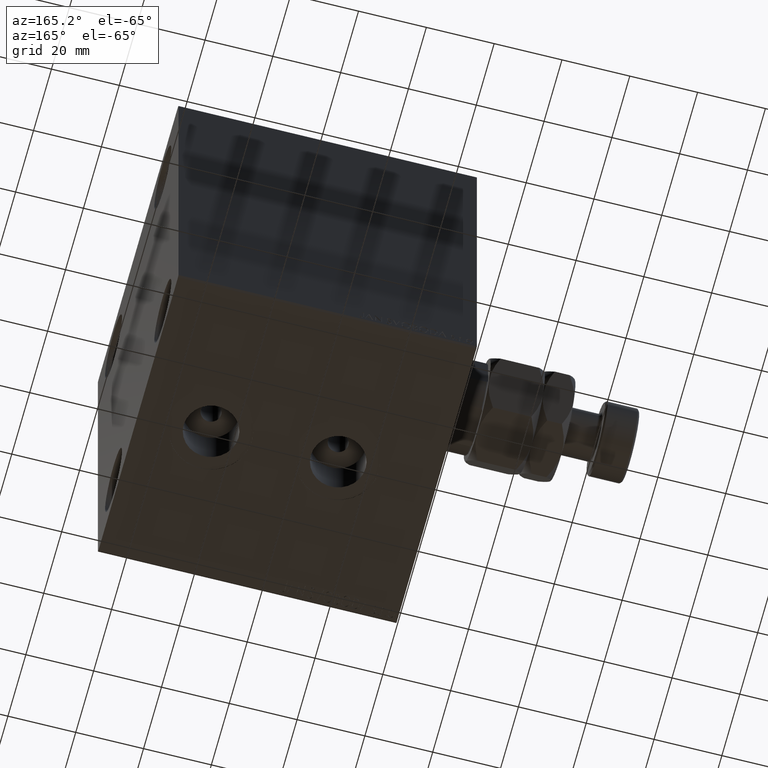
[diagram: clean part render]
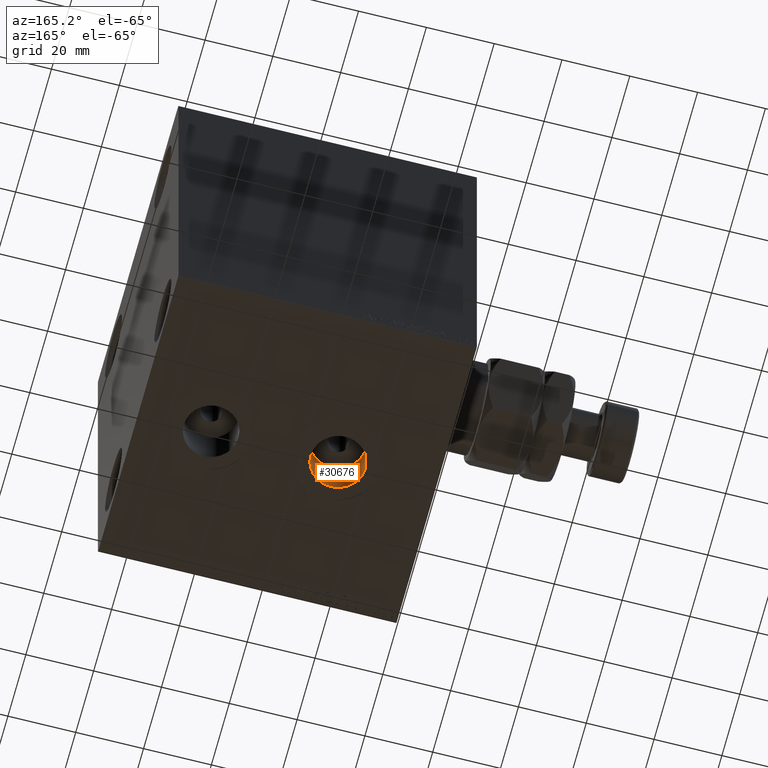
[diagram: same view with one face highlighted and labeled with its STEP entity id]
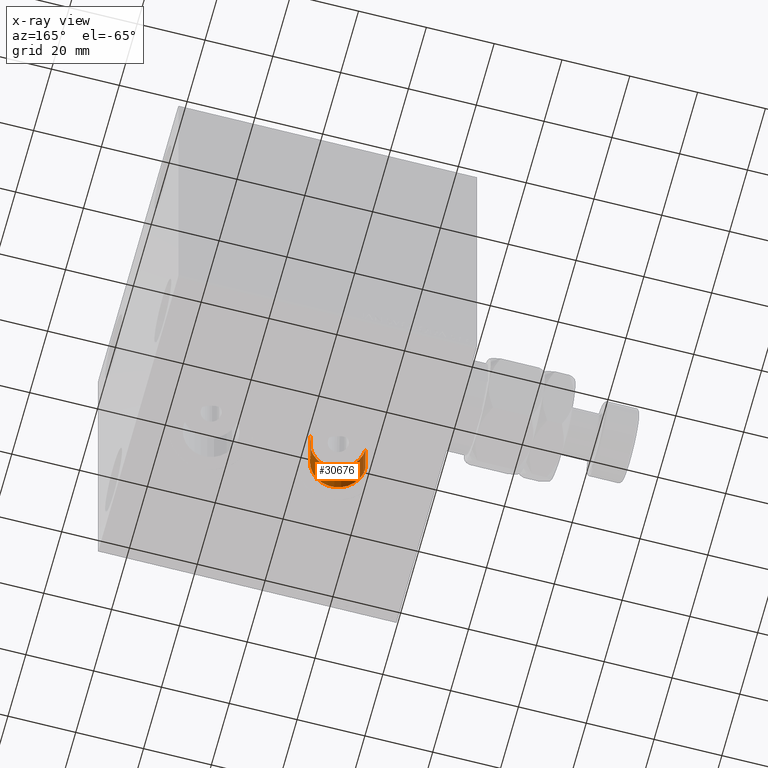
[diagram: x-ray of the same camera — body ghosted, the highlighted face saturated]
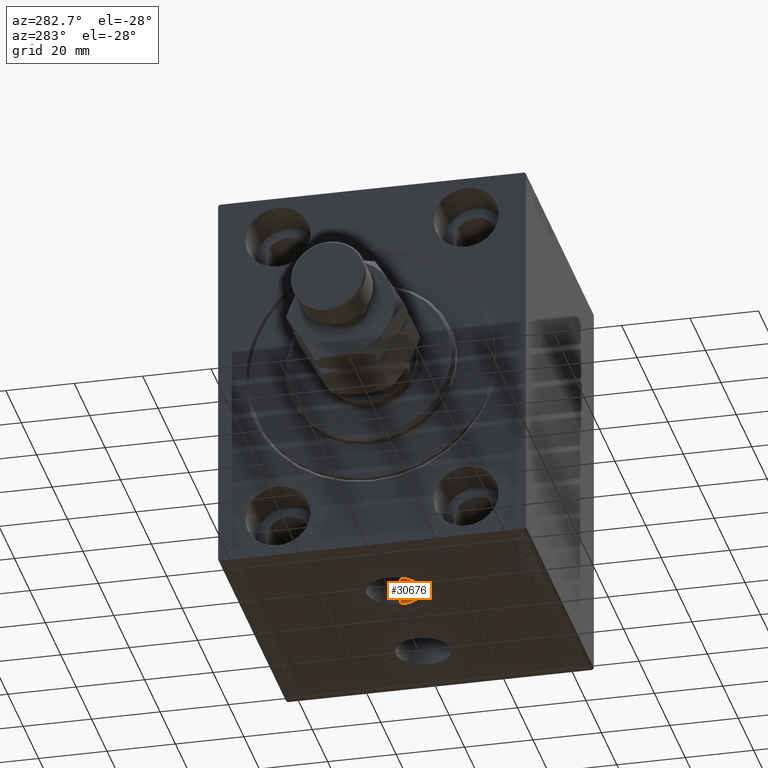
[diagram: same view with one face highlighted and labeled with its STEP entity id]
A machine part, auxiliary view. The second image highlights one B-rep face of the part: STEP entity #30676.
The next image is the same camera in x-ray: the body ghosted, the highlighted face saturated — about 0% of this face is hidden behind the body in this view.
A second angle (auxiliary view) of the same face is appended — the face is thin or edge-on in the first view.
In plain terms, the highlighted cylindrical surface (edge-blend (fillet) strip) has radius 8.085 mm, axis along (-0, -0, -1).
Its self-contained STEP definition (entity closure, byte-faithful):
#689 = CARTESIAN_POINT ( 'NONE',  ( 20.91500000000000270, -6.196433163362529681E-15, -57.40000000000000568 ) ) ;
#3069 = DIRECTION ( 'NONE',  ( 0.000000000000000000, 0.000000000000000000, -1.000000000000000000 ) ) ;
#3290 = VECTOR ( 'NONE', #39647, 1000.000000000000000 ) ;
#3312 = LINE ( 'NONE', #7950, #42708 ) ;
#3834 = CIRCLE ( 'NONE', #12872, 8.084999999999999076 ) ;
#4596 = FACE_OUTER_BOUND ( 'NONE', #28737, .T. ) ;
#6834 = AXIS2_PLACEMENT_3D ( 'NONE', #33447, #41240, #8835 ) ;
#7721 = LINE ( 'NONE', #24974, #3290 ) ;
#7950 = CARTESIAN_POINT ( 'NONE',  ( 37.08500000000000085, -5.206306226251895314E-15, -44.50000000000000711 ) ) ;
#8659 = ORIENTED_EDGE ( 'NONE', *, *, #31930, .T. ) ;
#8835 = DIRECTION ( 'NONE',  ( -1.000000000000000000, 0.000000000000000000, 0.000000000000000000 ) ) ;
#10119 = CARTESIAN_POINT ( 'NONE',  ( 37.08500000000000085, -5.206306226251895314E-15, -57.40000000000000568 ) ) ;
#11987 = CARTESIAN_POINT ( 'NONE',  ( 29.00000000000000000, -6.196433163362529681E-15, -57.40000000000000568 ) ) ;
#12655 = CARTESIAN_POINT ( 'NONE',  ( 20.91500000000000270, -6.196433163362529681E-15, -44.50000000000000711 ) ) ;
#12872 = AXIS2_PLACEMENT_3D ( 'NONE', #35695, #3069, #21044 ) ;
#14730 = VERTEX_POINT ( 'NONE', #689 ) ;
#16616 = EDGE_CURVE ( 'NONE', #44253, #18307, #3312, .T. ) ;
#18307 = VERTEX_POINT ( 'NONE', #10119 ) ;
#20261 = ORIENTED_EDGE ( 'NONE', *, *, #16616, .T. ) ;
#20367 = CIRCLE ( 'NONE', #46833, 8.084999999999999076 ) ;
#21044 = DIRECTION ( 'NONE',  ( -1.000000000000000000, 0.000000000000000000, 0.000000000000000000 ) ) ;
#24974 = CARTESIAN_POINT ( 'NONE',  ( 20.91500000000000270, -6.196433163362529681E-15, -44.50000000000000711 ) ) ;
#26115 = CYLINDRICAL_SURFACE ( 'NONE', #6834, 8.084999999999999076 ) ;
#26424 = DIRECTION ( 'NONE',  ( 0.000000000000000000, 0.000000000000000000, -1.000000000000000000 ) ) ;
#28737 = EDGE_LOOP ( 'NONE', ( #29229, #20261, #8659, #42553 ) ) ;
#29229 = ORIENTED_EDGE ( 'NONE', *, *, #34391, .F. ) ;
#30676 = ADVANCED_FACE ( 'NONE', ( #4596 ), #26115, .F. ) ;
#31184 = CARTESIAN_POINT ( 'NONE',  ( 37.08500000000000085, -5.206306226251895314E-15, -44.50000000000000711 ) ) ;
#31930 = EDGE_CURVE ( 'NONE', #18307, #14730, #20367, .T. ) ;
#33447 = CARTESIAN_POINT ( 'NONE',  ( 29.00000000000000000, -6.196433163362529681E-15, -44.50000000000000711 ) ) ;
#34391 = EDGE_CURVE ( 'NONE', #44253, #45604, #3834, .T. ) ;
#35254 = DIRECTION ( 'NONE',  ( -0.000000000000000000, -0.000000000000000000, -1.000000000000000000 ) ) ;
#35695 = CARTESIAN_POINT ( 'NONE',  ( 29.00000000000000000, -6.196433163362529681E-15, -44.50000000000000711 ) ) ;
#39647 = DIRECTION ( 'NONE',  ( -0.000000000000000000, -0.000000000000000000, -1.000000000000000000 ) ) ;
#40808 = EDGE_CURVE ( 'NONE', #45604, #14730, #7721, .T. ) ;
#40852 = DIRECTION ( 'NONE',  ( -1.000000000000000000, 0.000000000000000000, 0.000000000000000000 ) ) ;
#41240 = DIRECTION ( 'NONE',  ( -0.000000000000000000, -0.000000000000000000, -1.000000000000000000 ) ) ;
#42553 = ORIENTED_EDGE ( 'NONE', *, *, #40808, .F. ) ;
#42708 = VECTOR ( 'NONE', #35254, 1000.000000000000000 ) ;
#44253 = VERTEX_POINT ( 'NONE', #31184 ) ;
#45604 = VERTEX_POINT ( 'NONE', #12655 ) ;
#46833 = AXIS2_PLACEMENT_3D ( 'NONE', #11987, #26424, #40852 ) ;